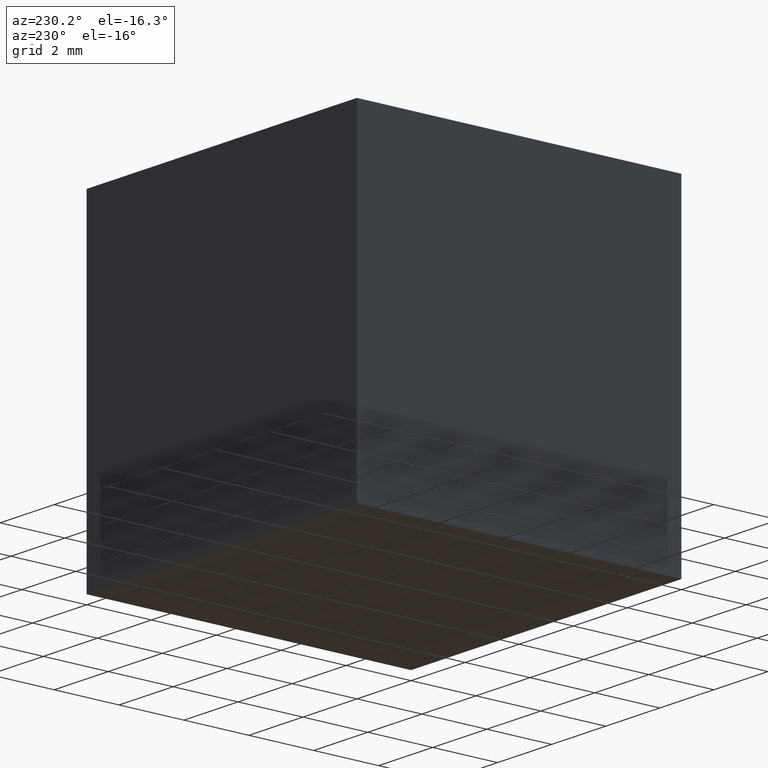
[diagram: clean part render]
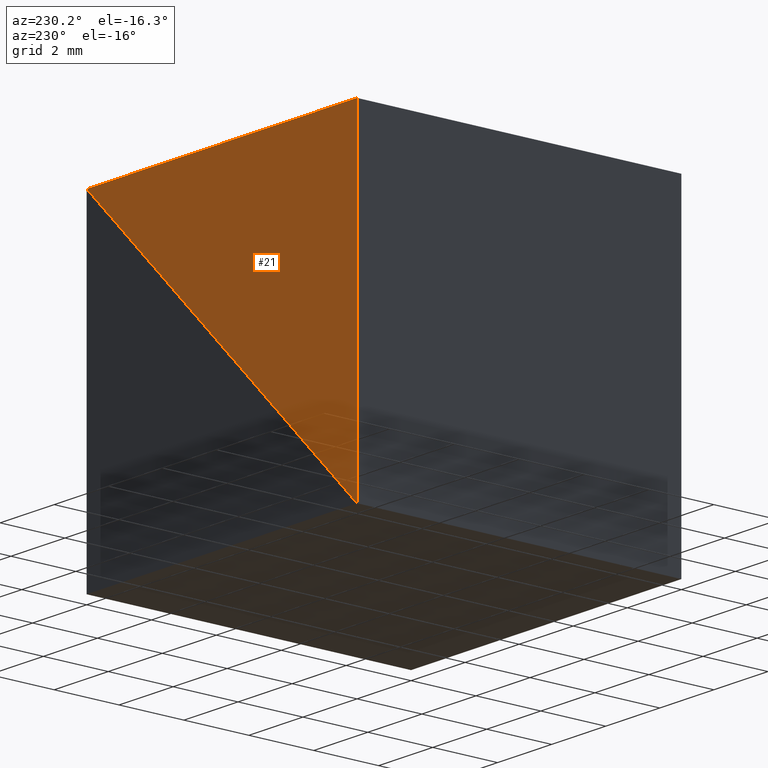
[diagram: same view with one face highlighted and labeled with its STEP entity id]
A machine part, auxiliary view. The second image highlights one B-rep face of the part: STEP entity #21.
In plain terms, the highlighted planar face has unit normal (0, 1, 0).
Its self-contained STEP definition (entity closure, byte-faithful):
#19 = LINE ( 'NONE', #48, #261 ) ;
#21 = ADVANCED_FACE ( 'NONE', ( #99 ), #195, .T. ) ;
#27 = ORIENTED_EDGE ( 'NONE', *, *, #134, .F. ) ;
#40 = ORIENTED_EDGE ( 'NONE', *, *, #227, .F. ) ;
#46 = CARTESIAN_POINT ( 'NONE',  ( 0.0000000000000000000, 10.00000000000000000, 0.0000000000000000000 ) ) ;
#48 = CARTESIAN_POINT ( 'NONE',  ( 0.0000000000000000000, 10.00000000000000000, 0.0000000000000000000 ) ) ;
#50 = VERTEX_POINT ( 'NONE', #114 ) ;
#55 = EDGE_LOOP ( 'NONE', ( #202, #40, #27 ) ) ;
#63 = LINE ( 'NONE', #262, #75 ) ;
#64 = EDGE_CURVE ( 'NONE', #197, #121, #19, .T. ) ;
#75 = VECTOR ( 'NONE', #111, 1000.000000000000000 ) ;
#99 = FACE_OUTER_BOUND ( 'NONE', #55, .T. ) ;
#111 = DIRECTION ( 'NONE',  ( -1.000000000000000000, -0.0000000000000000000, -0.0000000000000000000 ) ) ;
#114 = CARTESIAN_POINT ( 'NONE',  ( -10.00000000000000000, 10.00000000000000000, 0.0000000000000000000 ) ) ;
#121 = VERTEX_POINT ( 'NONE', #46 ) ;
#134 = EDGE_CURVE ( 'NONE', #121, #50, #63, .T. ) ;
#160 = LINE ( 'NONE', #209, #282 ) ;
#163 = DIRECTION ( 'NONE',  ( 0.7071067811865476800, 0.0000000000000000000, 0.7071067811865474600 ) ) ;
#166 = DIRECTION ( 'NONE',  ( 0.0000000000000000000, -0.0000000000000000000, 1.000000000000000000 ) ) ;
#184 = DIRECTION ( 'NONE',  ( -0.0000000000000000000, -0.0000000000000000000, -1.000000000000000000 ) ) ;
#195 = PLANE ( 'NONE',  #199 ) ;
#197 = VERTEX_POINT ( 'NONE', #212 ) ;
#199 = AXIS2_PLACEMENT_3D ( 'NONE', #220, #241, #166 ) ;
#202 = ORIENTED_EDGE ( 'NONE', *, *, #64, .F. ) ;
#209 = CARTESIAN_POINT ( 'NONE',  ( -10.00000000000000000, 10.00000000000000000, -9.999999999999996400 ) ) ;
#212 = CARTESIAN_POINT ( 'NONE',  ( -10.00000000000000000, 10.00000000000000000, -9.999999999999996400 ) ) ;
#220 = CARTESIAN_POINT ( 'NONE',  ( 0.0000000000000000000, 10.00000000000000000, 0.0000000000000000000 ) ) ;
#227 = EDGE_CURVE ( 'NONE', #50, #197, #160, .T. ) ;
#241 = DIRECTION ( 'NONE',  ( 0.0000000000000000000, 1.000000000000000000, 0.0000000000000000000 ) ) ;
#261 = VECTOR ( 'NONE', #163, 1000.000000000000000 ) ;
#262 = CARTESIAN_POINT ( 'NONE',  ( -10.00000000000000000, 10.00000000000000000, 0.0000000000000000000 ) ) ;
#282 = VECTOR ( 'NONE', #184, 1000.000000000000000 ) ;